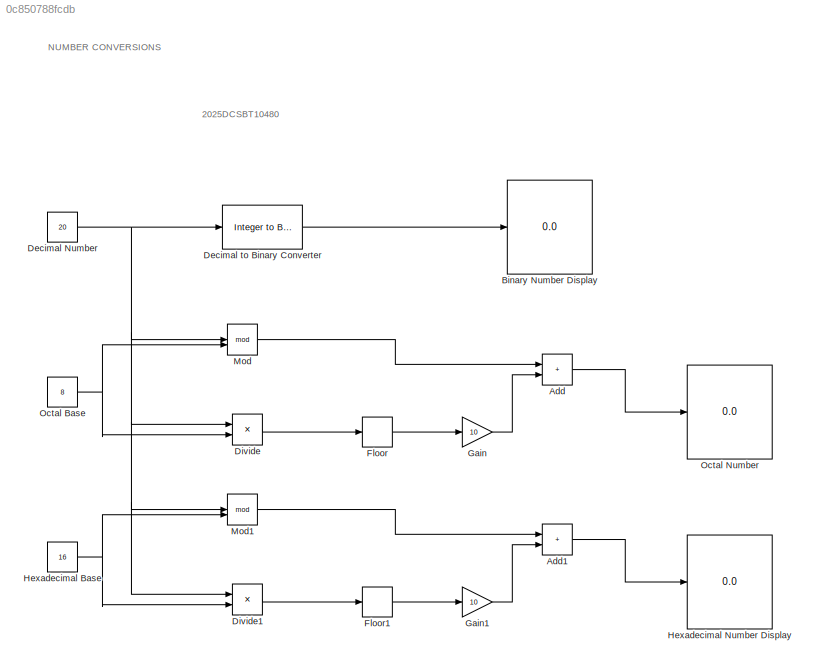
MODEL slx_0c850788fcdb
KIND model
CONFIG AbsTol = auto
CONFIG EnableMultiTasking = off
CONFIG FixedStep = auto
CONFIG MaxStep = auto
CONFIG MinStep = auto
CONFIG RelTol = 1e-3
CONFIG SampleTimeConstraint = Unconstrained
CONFIG SolverName = VariableStepAuto
CONFIG StartTime = 0.0
CONFIG StopTime = 10.0
BLOCK [Sum] Add
  IconShape = rectangular
BLOCK [Sum] Add1
  IconShape = rectangular
BLOCK [Display] Binary Number Display
  Decimation = 1
BLOCK [Constant] Decimal Number
  Value = 20
BLOCK [Reference] Decimal to Binary Converter  REF=simulink/Logic and Bit
Operations/Integer to Bit
Converter
  SourceBlock = simulink/Logic and Bit\nOperations/Integer to Bit\nConverter
  SourceType = Integer to Bit Converter
BLOCK [Product] Divide
  Inputs = */
BLOCK [Product] Divide1
  Inputs = */
BLOCK [Rounding] Floor
BLOCK [Rounding] Floor1
BLOCK [Gain] Gain
  Gain = 10
BLOCK [Gain] Gain1
  Gain = 10
BLOCK [Constant] Hexadecimal Base
  Value = 16
BLOCK [Display] Hexadecimal Number Display
  Decimation = 1
BLOCK [Math] Mod
  Operator = mod
  SignedPower = on
BLOCK [Math] Mod1
  Operator = mod
  SignedPower = on
BLOCK [Constant] Octal Base
  Value = 8
BLOCK [Display] Octal Number
  Decimation = 1
ANNOTATION (root): 2025DCSBT10480
ANNOTATION (root): NUMBER CONVERSIONS
LINE Add1:1 -> Hexadecimal Number Display:1
LINE Add:1 -> Octal Number:1
NET Decimal Number:1 -> Decimal to Binary Converter:1, Divide1:1, Divide:1, Mod1:1, Mod:1
LINE Decimal to Binary Converter:1 -> Binary Number Display:1
LINE Divide1:1 -> Floor1:1
LINE Divide:1 -> Floor:1
LINE Floor1:1 -> Gain1:1
LINE Floor:1 -> Gain:1
LINE Gain1:1 -> Add1:2
LINE Gain:1 -> Add:2
NET Hexadecimal Base:1 -> Divide1:2, Mod1:2
LINE Mod1:1 -> Add1:1
LINE Mod:1 -> Add:1
NET Octal Base:1 -> Divide:2, Mod:2
note: NET lines group one-source signal fan-out (src -> all destinations, sorted); 1:1 wires keep LINE
